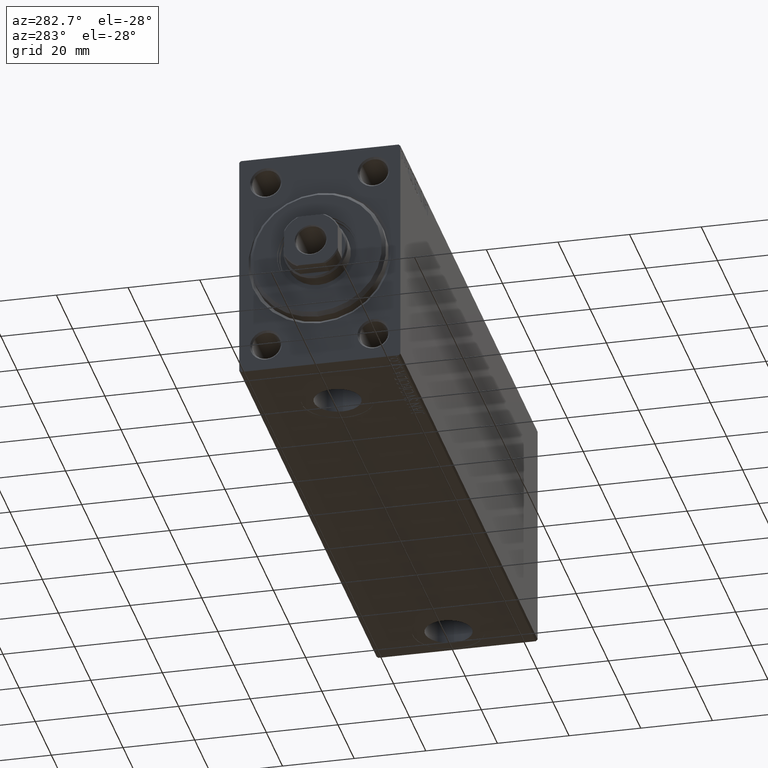
[diagram: clean part render]
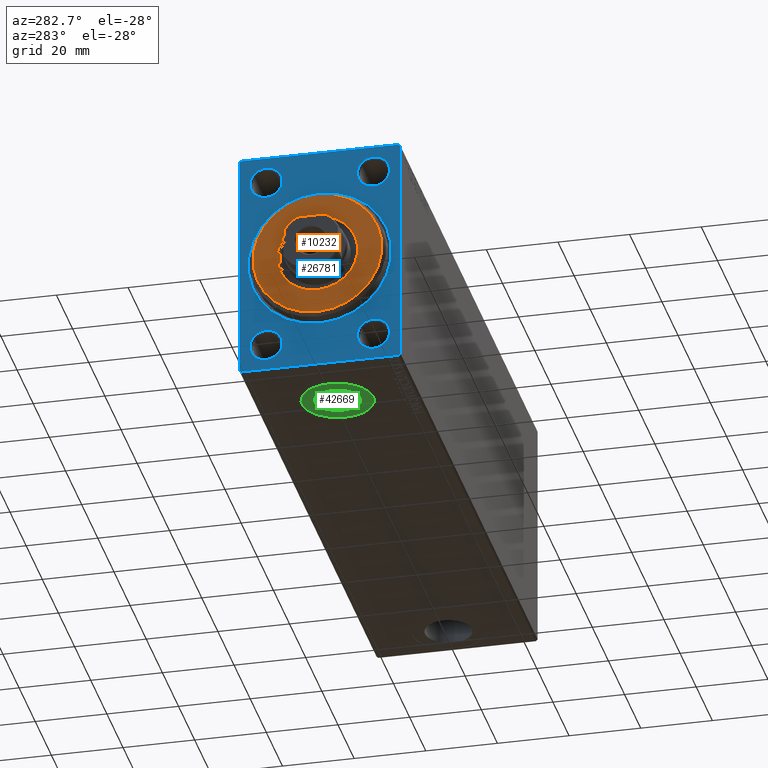
[diagram: same view with three faces highlighted in distinct colors, each labeled with its STEP entity id]
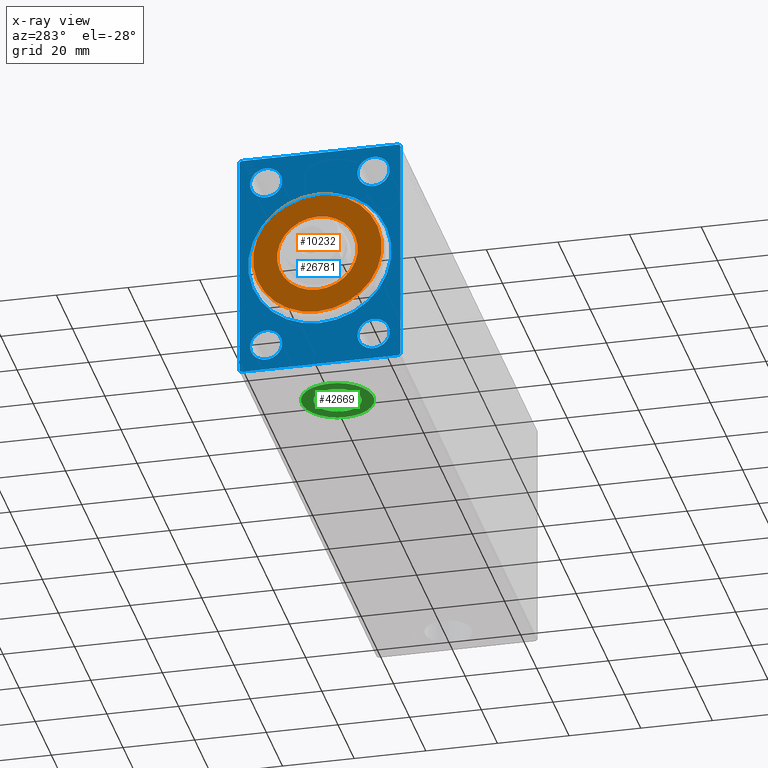
[diagram: x-ray of the same camera — body ghosted, the three highlighted faces saturated]
A machine part, auxiliary view with three faces highlighted in distinct colors.
The next image is the same camera in x-ray (body ghosted, the three faces saturated) — at least one of them is partly hidden behind the body in this view.
Their STEP definitions:

[orange] entity #10232 — the highlighted planar face has unit normal (-1, 0, 0).
#2002 = EDGE_LOOP ( 'NONE', ( #10894, #34374 ) ) ;
#2682 = CIRCLE ( 'NONE', #32114, 11.25000000000000178 ) ;
#4158 = EDGE_LOOP ( 'NONE', ( #38680, #17579 ) ) ;
#4771 = EDGE_CURVE ( 'NONE', #23328, #22974, #31014, .T. ) ;
#5817 = DIRECTION ( 'NONE',  ( 1.000000000000000000, -0.000000000000000000, 0.000000000000000000 ) ) ;
#6651 = DIRECTION ( 'NONE',  ( 0.000000000000000000, 0.000000000000000000, -1.000000000000000000 ) ) ;
#10232 = ADVANCED_FACE ( 'NONE', ( #40799, #30193 ), #23717, .T. ) ;
#10894 = ORIENTED_EDGE ( 'NONE', *, *, #21298, .F. ) ;
#11777 = CARTESIAN_POINT ( 'NONE',  ( 3.000000000000000000, 0.000000000000000000, 0.000000000000000000 ) ) ;
#12361 = CARTESIAN_POINT ( 'NONE',  ( 3.000000000000000000, 0.000000000000000000, 0.000000000000000000 ) ) ;
#12739 = CARTESIAN_POINT ( 'NONE',  ( 3.000000000000000000, 0.000000000000000000, 0.000000000000000000 ) ) ;
#12965 = DIRECTION ( 'NONE',  ( 0.000000000000000000, 0.000000000000000000, -1.000000000000000000 ) ) ;
#13223 = CARTESIAN_POINT ( 'NONE',  ( 3.000000000000000000, 0.000000000000000000, 17.99999999999999645 ) ) ;
#13451 = VERTEX_POINT ( 'NONE', #33725 ) ;
#13473 = AXIS2_PLACEMENT_3D ( 'NONE', #33884, #20479, #6651 ) ;
#17544 = DIRECTION ( 'NONE',  ( 0.000000000000000000, 0.000000000000000000, -1.000000000000000000 ) ) ;
#17579 = ORIENTED_EDGE ( 'NONE', *, *, #34852, .T. ) ;
#18667 = VERTEX_POINT ( 'NONE', #18672 ) ;
#18672 = CARTESIAN_POINT ( 'NONE',  ( 3.000000000000000000, 1.377727649040772586E-15, 11.25000000000000178 ) ) ;
#19024 = DIRECTION ( 'NONE',  ( 1.000000000000000000, 0.000000000000000000, 0.000000000000000000 ) ) ;
#20479 = DIRECTION ( 'NONE',  ( 1.000000000000000000, -0.000000000000000000, 0.000000000000000000 ) ) ;
#21016 = AXIS2_PLACEMENT_3D ( 'NONE', #11777, #22826, #36895 ) ;
#21258 = CIRCLE ( 'NONE', #44857, 17.99999999999999645 ) ;
#21298 = EDGE_CURVE ( 'NONE', #13451, #18667, #40915, .T. ) ;
#21973 = EDGE_CURVE ( 'NONE', #18667, #13451, #2682, .T. ) ;
#22826 = DIRECTION ( 'NONE',  ( 1.000000000000000000, 0.000000000000000000, 0.000000000000000000 ) ) ;
#22974 = VERTEX_POINT ( 'NONE', #41171 ) ;
#23328 = VERTEX_POINT ( 'NONE', #13223 ) ;
#23717 = PLANE ( 'NONE',  #13473 ) ;
#26410 = DIRECTION ( 'NONE',  ( 0.000000000000000000, 0.000000000000000000, -1.000000000000000000 ) ) ;
#30193 = FACE_BOUND ( 'NONE', #2002, .T. ) ;
#30194 = AXIS2_PLACEMENT_3D ( 'NONE', #12739, #5817, #12965 ) ;
#31014 = CIRCLE ( 'NONE', #30194, 17.99999999999999645 ) ;
#32114 = AXIS2_PLACEMENT_3D ( 'NONE', #12361, #19024, #26410 ) ;
#33725 = CARTESIAN_POINT ( 'NONE',  ( 3.000000000000000000, 0.000000000000000000, -11.25000000000000178 ) ) ;
#33884 = CARTESIAN_POINT ( 'NONE',  ( 3.000000000000000000, 0.000000000000000000, 0.000000000000000000 ) ) ;
#34374 = ORIENTED_EDGE ( 'NONE', *, *, #21973, .F. ) ;
#34852 = EDGE_CURVE ( 'NONE', #22974, #23328, #21258, .T. ) ;
#36895 = DIRECTION ( 'NONE',  ( 0.000000000000000000, 0.000000000000000000, -1.000000000000000000 ) ) ;
#38680 = ORIENTED_EDGE ( 'NONE', *, *, #4771, .T. ) ;
#40799 = FACE_OUTER_BOUND ( 'NONE', #4158, .T. ) ;
#40915 = CIRCLE ( 'NONE', #21016, 11.25000000000000178 ) ;
#41171 = CARTESIAN_POINT ( 'NONE',  ( 3.000000000000000000, 2.265596578422603002E-15, -17.99999999999999645 ) ) ;
#41987 = DIRECTION ( 'NONE',  ( 1.000000000000000000, -0.000000000000000000, 0.000000000000000000 ) ) ;
#44857 = AXIS2_PLACEMENT_3D ( 'NONE', #45219, #41987, #17544 ) ;
#45219 = CARTESIAN_POINT ( 'NONE',  ( 3.000000000000000000, 0.000000000000000000, 0.000000000000000000 ) ) ;

[blue] entity #26781 — the highlighted planar face has unit normal (1, 0, 0).
#591 = EDGE_CURVE ( 'NONE', #45470, #1591, #43165, .T. ) ;
#649 = LINE ( 'NONE', #21390, #38697 ) ;
#1357 = DIRECTION ( 'NONE',  ( 1.000000000000000000, 0.000000000000000000, 0.000000000000000000 ) ) ;
#1418 = ORIENTED_EDGE ( 'NONE', *, *, #2277, .T. ) ;
#1545 = ORIENTED_EDGE ( 'NONE', *, *, #38624, .T. ) ;
#1591 = VERTEX_POINT ( 'NONE', #19574 ) ;
#1716 = ORIENTED_EDGE ( 'NONE', *, *, #43760, .T. ) ;
#2277 = EDGE_CURVE ( 'NONE', #18283, #8935, #10920, .T. ) ;
#2509 = DIRECTION ( 'NONE',  ( 0.000000000000000000, 0.000000000000000000, -1.000000000000000000 ) ) ;
#2544 = CARTESIAN_POINT ( 'NONE',  ( 0.000000000000000000, -15.00000000000000000, 25.00000000000000000 ) ) ;
#2612 = DIRECTION ( 'NONE',  ( 1.000000000000000000, 0.000000000000000000, 0.000000000000000000 ) ) ;
#2870 = EDGE_LOOP ( 'NONE', ( #44843, #11140 ) ) ;
#3331 = CARTESIAN_POINT ( 'NONE',  ( 0.000000000000000000, 22.00000000000000000, 32.49999999999999289 ) ) ;
#4206 = ORIENTED_EDGE ( 'NONE', *, *, #13511, .F. ) ;
#4374 = DIRECTION ( 'NONE',  ( -0.000000000000000000, 0.7071067811865279218, 0.7071067811865672237 ) ) ;
#4520 = FACE_OUTER_BOUND ( 'NONE', #43807, .T. ) ;
#4721 = AXIS2_PLACEMENT_3D ( 'NONE', #2544, #9453, #23723 ) ;
#4735 = VERTEX_POINT ( 'NONE', #24223 ) ;
#4840 = ORIENTED_EDGE ( 'NONE', *, *, #591, .T. ) ;
#4896 = EDGE_LOOP ( 'NONE', ( #37100, #1716 ) ) ;
#5299 = DIRECTION ( 'NONE',  ( 1.000000000000000000, 0.000000000000000000, 0.000000000000000000 ) ) ;
#5822 = CARTESIAN_POINT ( 'NONE',  ( 0.000000000000000000, 15.00000000000000178, 25.00000000000000000 ) ) ;
#6200 = CARTESIAN_POINT ( 'NONE',  ( 0.000000000000000000, -15.00000000000000000, -20.50000000000002487 ) ) ;
#6264 = CARTESIAN_POINT ( 'NONE',  ( 0.000000000000000000, 2.449293598294701780E-15, -19.99999999999996092 ) ) ;
#6396 = DIRECTION ( 'NONE',  ( 0.000000000000000000, 0.000000000000000000, -1.000000000000000000 ) ) ;
#6482 = CARTESIAN_POINT ( 'NONE',  ( 0.000000000000000000, -21.99999999999996447, -32.50000000000000711 ) ) ;
#6528 = EDGE_CURVE ( 'NONE', #39019, #4735, #43559, .T. ) ;
#6590 = ORIENTED_EDGE ( 'NONE', *, *, #21448, .F. ) ;
#7052 = EDGE_CURVE ( 'NONE', #39267, #39348, #24434, .T. ) ;
#7182 = EDGE_CURVE ( 'NONE', #14911, #45431, #16341, .T. ) ;
#7443 = CARTESIAN_POINT ( 'NONE',  ( 0.000000000000000000, 22.50000000000000000, 31.99999999999999289 ) ) ;
#7609 = VECTOR ( 'NONE', #13717, 1000.000000000000000 ) ;
#7751 = DIRECTION ( 'NONE',  ( 1.000000000000000000, 0.000000000000000000, 0.000000000000000000 ) ) ;
#8337 = AXIS2_PLACEMENT_3D ( 'NONE', #20003, #13553, #2509 ) ;
#8504 = CARTESIAN_POINT ( 'NONE',  ( 0.000000000000000000, 22.50000000000000711, -32.50000000000000711 ) ) ;
#8695 = AXIS2_PLACEMENT_3D ( 'NONE', #29168, #26404, #12135 ) ;
#8710 = ORIENTED_EDGE ( 'NONE', *, *, #35972, .F. ) ;
#8935 = VERTEX_POINT ( 'NONE', #7443 ) ;
#8980 = DIRECTION ( 'NONE',  ( 0.000000000000000000, 0.000000000000000000, -1.000000000000000000 ) ) ;
#9453 = DIRECTION ( 'NONE',  ( 1.000000000000000000, 0.000000000000000000, 0.000000000000000000 ) ) ;
#9577 = CARTESIAN_POINT ( 'NONE',  ( 0.000000000000000000, 22.50000000000000711, -31.99999999999997868 ) ) ;
#9762 = ORIENTED_EDGE ( 'NONE', *, *, #42268, .T. ) ;
#9776 = CARTESIAN_POINT ( 'NONE',  ( 0.000000000000000000, 15.00000000000000178, 29.49999999999997868 ) ) ;
#10217 = ORIENTED_EDGE ( 'NONE', *, *, #44103, .F. ) ;
#10920 = LINE ( 'NONE', #3331, #17703 ) ;
#11140 = ORIENTED_EDGE ( 'NONE', *, *, #29702, .T. ) ;
#11384 = ORIENTED_EDGE ( 'NONE', *, *, #7052, .T. ) ;
#11613 = AXIS2_PLACEMENT_3D ( 'NONE', #29981, #44047, #33671 ) ;
#11927 = VECTOR ( 'NONE', #4374, 1000.000000000000000 ) ;
#11961 = DIRECTION ( 'NONE',  ( 0.000000000000000000, -1.067522139062650425E-16, 1.000000000000000000 ) ) ;
#12050 = CARTESIAN_POINT ( 'NONE',  ( 0.000000000000000000, -22.49999999999999289, 31.99999999999995737 ) ) ;
#12121 = CARTESIAN_POINT ( 'NONE',  ( 0.000000000000000000, 22.00000000000000000, 32.49999999999999289 ) ) ;
#12135 = DIRECTION ( 'NONE',  ( 0.000000000000000000, 0.000000000000000000, -1.000000000000000000 ) ) ;
#12354 = EDGE_CURVE ( 'NONE', #30907, #45626, #13539, .T. ) ;
#12357 = FACE_BOUND ( 'NONE', #2870, .T. ) ;
#12633 = EDGE_CURVE ( 'NONE', #4735, #39019, #16504, .T. ) ;
#12698 = CARTESIAN_POINT ( 'NONE',  ( 0.000000000000000000, 21.99999999999999289, -32.50000000000000711 ) ) ;
#13099 = CARTESIAN_POINT ( 'NONE',  ( 0.000000000000000000, 15.00000000000000178, -25.00000000000000000 ) ) ;
#13275 = EDGE_LOOP ( 'NONE', ( #1545, #44998 ) ) ;
#13511 = EDGE_CURVE ( 'NONE', #18283, #39348, #28825, .T. ) ;
#13539 = CIRCLE ( 'NONE', #18687, 4.499999999999976019 ) ;
#13553 = DIRECTION ( 'NONE',  ( 1.000000000000000000, 0.000000000000000000, 0.000000000000000000 ) ) ;
#13697 = DIRECTION ( 'NONE',  ( -0.000000000000000000, 0.7071067811865474617, -0.7071067811865474617 ) ) ;
#13717 = DIRECTION ( 'NONE',  ( 0.000000000000000000, 0.000000000000000000, -1.000000000000000000 ) ) ;
#14593 = DIRECTION ( 'NONE',  ( 0.000000000000000000, 0.000000000000000000, -1.000000000000000000 ) ) ;
#14807 = CARTESIAN_POINT ( 'NONE',  ( 0.000000000000000000, -21.99999999999996447, -32.50000000000000711 ) ) ;
#14911 = VERTEX_POINT ( 'NONE', #32416 ) ;
#15009 = VERTEX_POINT ( 'NONE', #15589 ) ;
#15112 = PLANE ( 'NONE',  #8695 ) ;
#15199 = CARTESIAN_POINT ( 'NONE',  ( 0.000000000000000000, -15.00000000000000000, 25.00000000000000000 ) ) ;
#15589 = CARTESIAN_POINT ( 'NONE',  ( 0.000000000000000000, -15.00000000000000000, 20.50000000000002487 ) ) ;
#15706 = VECTOR ( 'NONE', #35297, 1000.000000000000000 ) ;
#15892 = DIRECTION ( 'NONE',  ( 0.000000000000000000, 0.000000000000000000, -1.000000000000000000 ) ) ;
#16341 = CIRCLE ( 'NONE', #28105, 19.99999999999996092 ) ;
#16367 = CIRCLE ( 'NONE', #35501, 4.499999999999976019 ) ;
#16504 = CIRCLE ( 'NONE', #23755, 4.499999999999976019 ) ;
#16527 = ORIENTED_EDGE ( 'NONE', *, *, #20423, .T. ) ;
#16866 = EDGE_CURVE ( 'NONE', #15009, #20484, #44484, .T. ) ;
#17170 = CARTESIAN_POINT ( 'NONE',  ( 0.000000000000000000, -22.49999999999999289, 32.49999999999998579 ) ) ;
#17703 = VECTOR ( 'NONE', #13697, 1000.000000000000114 ) ;
#17946 = DIRECTION ( 'NONE',  ( 0.000000000000000000, 1.000000000000000000, 0.000000000000000000 ) ) ;
#18224 = CARTESIAN_POINT ( 'NONE',  ( 0.000000000000000000, 22.50000000000000000, 32.49999999999999289 ) ) ;
#18283 = VERTEX_POINT ( 'NONE', #12121 ) ;
#18334 = FACE_BOUND ( 'NONE', #28951, .T. ) ;
#18687 = AXIS2_PLACEMENT_3D ( 'NONE', #13099, #27156, #6396 ) ;
#19020 = FACE_BOUND ( 'NONE', #4896, .T. ) ;
#19574 = CARTESIAN_POINT ( 'NONE',  ( 0.000000000000000000, -22.49999999999999289, -32.00000000000001421 ) ) ;
#19841 = CARTESIAN_POINT ( 'NONE',  ( 0.000000000000000000, -15.00000000000000000, -29.49999999999997868 ) ) ;
#20003 = CARTESIAN_POINT ( 'NONE',  ( 0.000000000000000000, -15.00000000000000000, -25.00000000000000000 ) ) ;
#20423 = EDGE_CURVE ( 'NONE', #45626, #30907, #24708, .T. ) ;
#20484 = VERTEX_POINT ( 'NONE', #22718 ) ;
#21390 = CARTESIAN_POINT ( 'NONE',  ( 0.000000000000000000, -22.49999999999999289, -32.50000000000000711 ) ) ;
#21448 = EDGE_CURVE ( 'NONE', #45470, #29805, #649, .T. ) ;
#21699 = ORIENTED_EDGE ( 'NONE', *, *, #12633, .T. ) ;
#21873 = CARTESIAN_POINT ( 'NONE',  ( 0.000000000000000000, -22.49999999999999289, 31.99999999999995737 ) ) ;
#22718 = CARTESIAN_POINT ( 'NONE',  ( 0.000000000000000000, -15.00000000000000000, 29.49999999999997868 ) ) ;
#23723 = DIRECTION ( 'NONE',  ( 0.000000000000000000, 0.000000000000000000, -1.000000000000000000 ) ) ;
#23755 = AXIS2_PLACEMENT_3D ( 'NONE', #5822, #30025, #27248 ) ;
#24223 = CARTESIAN_POINT ( 'NONE',  ( 0.000000000000000000, 15.00000000000000178, 20.50000000000002487 ) ) ;
#24434 = LINE ( 'NONE', #21873, #11927 ) ;
#24708 = CIRCLE ( 'NONE', #45346, 4.499999999999976019 ) ;
#24742 = CARTESIAN_POINT ( 'NONE',  ( 0.000000000000000000, -15.00000000000000000, -25.00000000000000000 ) ) ;
#26404 = DIRECTION ( 'NONE',  ( 1.000000000000000000, 0.000000000000000000, 0.000000000000000000 ) ) ;
#26635 = AXIS2_PLACEMENT_3D ( 'NONE', #15199, #5299, #8980 ) ;
#26781 = ADVANCED_FACE ( 'NONE', ( #12357, #19020, #32636, #36096, #18334, #4520 ), #15112, .F. ) ;
#27156 = DIRECTION ( 'NONE',  ( 1.000000000000000000, 0.000000000000000000, 0.000000000000000000 ) ) ;
#27248 = DIRECTION ( 'NONE',  ( 0.000000000000000000, 0.000000000000000000, -1.000000000000000000 ) ) ;
#27447 = VECTOR ( 'NONE', #27916, 1000.000000000000000 ) ;
#27707 = DIRECTION ( 'NONE',  ( 0.000000000000000000, 0.000000000000000000, -1.000000000000000000 ) ) ;
#27916 = DIRECTION ( 'NONE',  ( 0.000000000000000000, -0.7071067811865279218, -0.7071067811865672237 ) ) ;
#28105 = AXIS2_PLACEMENT_3D ( 'NONE', #33418, #1357, #15892 ) ;
#28825 = LINE ( 'NONE', #18224, #15706 ) ;
#28951 = EDGE_LOOP ( 'NONE', ( #35647, #16527 ) ) ;
#29029 = VERTEX_POINT ( 'NONE', #19841 ) ;
#29168 = CARTESIAN_POINT ( 'NONE',  ( 0.000000000000000000, 0.000000000000000000, 0.000000000000000000 ) ) ;
#29492 = CARTESIAN_POINT ( 'NONE',  ( 0.000000000000000000, 15.00000000000000178, -29.49999999999997868 ) ) ;
#29702 = EDGE_CURVE ( 'NONE', #45431, #14911, #40314, .T. ) ;
#29805 = VERTEX_POINT ( 'NONE', #12698 ) ;
#29981 = CARTESIAN_POINT ( 'NONE',  ( 0.000000000000000000, 0.000000000000000000, 0.000000000000000000 ) ) ;
#30025 = DIRECTION ( 'NONE',  ( 1.000000000000000000, 0.000000000000000000, 0.000000000000000000 ) ) ;
#30907 = VERTEX_POINT ( 'NONE', #37255 ) ;
#32416 = CARTESIAN_POINT ( 'NONE',  ( 0.000000000000000000, 0.000000000000000000, 19.99999999999996092 ) ) ;
#32636 = FACE_BOUND ( 'NONE', #13275, .T. ) ;
#33161 = LINE ( 'NONE', #8504, #41205 ) ;
#33418 = CARTESIAN_POINT ( 'NONE',  ( 0.000000000000000000, 0.000000000000000000, 0.000000000000000000 ) ) ;
#33671 = DIRECTION ( 'NONE',  ( 0.000000000000000000, 0.000000000000000000, -1.000000000000000000 ) ) ;
#33863 = VECTOR ( 'NONE', #35570, 1000.000000000000000 ) ;
#33978 = CIRCLE ( 'NONE', #26635, 4.499999999999976019 ) ;
#33986 = VERTEX_POINT ( 'NONE', #6200 ) ;
#35297 = DIRECTION ( 'NONE',  ( 0.000000000000000000, -1.000000000000000000, -1.541976423090495633E-16 ) ) ;
#35501 = AXIS2_PLACEMENT_3D ( 'NONE', #24742, #38808, #14593 ) ;
#35570 = DIRECTION ( 'NONE',  ( -0.000000000000000000, -0.7071067811865721087, 0.7071067811865230368 ) ) ;
#35647 = ORIENTED_EDGE ( 'NONE', *, *, #12354, .T. ) ;
#35972 = EDGE_CURVE ( 'NONE', #44544, #8935, #33161, .T. ) ;
#36096 = FACE_BOUND ( 'NONE', #43743, .T. ) ;
#36684 = CARTESIAN_POINT ( 'NONE',  ( 0.000000000000000000, 22.50000000000000711, -31.99999999999997868 ) ) ;
#37100 = ORIENTED_EDGE ( 'NONE', *, *, #40823, .T. ) ;
#37255 = CARTESIAN_POINT ( 'NONE',  ( 0.000000000000000000, 15.00000000000000178, -20.50000000000002487 ) ) ;
#38624 = EDGE_CURVE ( 'NONE', #20484, #15009, #33978, .T. ) ;
#38697 = VECTOR ( 'NONE', #17946, 1000.000000000000000 ) ;
#38808 = DIRECTION ( 'NONE',  ( 1.000000000000000000, 0.000000000000000000, 0.000000000000000000 ) ) ;
#39019 = VERTEX_POINT ( 'NONE', #9776 ) ;
#39040 = ORIENTED_EDGE ( 'NONE', *, *, #6528, .T. ) ;
#39267 = VERTEX_POINT ( 'NONE', #12050 ) ;
#39348 = VERTEX_POINT ( 'NONE', #45206 ) ;
#39551 = DIRECTION ( 'NONE',  ( 0.000000000000000000, 0.000000000000000000, -1.000000000000000000 ) ) ;
#40314 = CIRCLE ( 'NONE', #11613, 19.99999999999996092 ) ;
#40753 = CIRCLE ( 'NONE', #8337, 4.499999999999976019 ) ;
#40823 = EDGE_CURVE ( 'NONE', #33986, #29029, #16367, .T. ) ;
#41205 = VECTOR ( 'NONE', #11961, 1000.000000000000000 ) ;
#41998 = CARTESIAN_POINT ( 'NONE',  ( 0.000000000000000000, 15.00000000000000178, 25.00000000000000000 ) ) ;
#42268 = EDGE_CURVE ( 'NONE', #44544, #29805, #45443, .T. ) ;
#42780 = CARTESIAN_POINT ( 'NONE',  ( 0.000000000000000000, 15.00000000000000178, -25.00000000000000000 ) ) ;
#43165 = LINE ( 'NONE', #14807, #33863 ) ;
#43559 = CIRCLE ( 'NONE', #45147, 4.499999999999976019 ) ;
#43743 = EDGE_LOOP ( 'NONE', ( #39040, #21699 ) ) ;
#43760 = EDGE_CURVE ( 'NONE', #29029, #33986, #40753, .T. ) ;
#43807 = EDGE_LOOP ( 'NONE', ( #10217, #11384, #4206, #1418, #8710, #9762, #6590, #4840 ) ) ;
#44047 = DIRECTION ( 'NONE',  ( 1.000000000000000000, 0.000000000000000000, 0.000000000000000000 ) ) ;
#44103 = EDGE_CURVE ( 'NONE', #39267, #1591, #44851, .T. ) ;
#44484 = CIRCLE ( 'NONE', #4721, 4.499999999999976019 ) ;
#44544 = VERTEX_POINT ( 'NONE', #36684 ) ;
#44843 = ORIENTED_EDGE ( 'NONE', *, *, #7182, .T. ) ;
#44851 = LINE ( 'NONE', #17170, #7609 ) ;
#44998 = ORIENTED_EDGE ( 'NONE', *, *, #16866, .T. ) ;
#45147 = AXIS2_PLACEMENT_3D ( 'NONE', #41998, #2612, #27707 ) ;
#45206 = CARTESIAN_POINT ( 'NONE',  ( 0.000000000000000000, -21.99999999999997868, 32.49999999999998579 ) ) ;
#45346 = AXIS2_PLACEMENT_3D ( 'NONE', #42780, #7751, #39551 ) ;
#45431 = VERTEX_POINT ( 'NONE', #6264 ) ;
#45443 = LINE ( 'NONE', #9577, #27447 ) ;
#45470 = VERTEX_POINT ( 'NONE', #6482 ) ;
#45626 = VERTEX_POINT ( 'NONE', #29492 ) ;

[green] entity #42669 — the highlighted planar face has unit normal (0, 0, -1).
#1129 = CARTESIAN_POINT ( 'NONE',  ( 15.41999999999999638, -2.910683231281019398E-15, -32.40000000000000568 ) ) ;
#1247 = EDGE_CURVE ( 'NONE', #44287, #11646, #41253, .T. ) ;
#1589 = EDGE_CURVE ( 'NONE', #7152, #19538, #24292, .T. ) ;
#1709 = AXIS2_PLACEMENT_3D ( 'NONE', #21450, #6957, #10417 ) ;
#2424 = AXIS2_PLACEMENT_3D ( 'NONE', #3899, #7122, #17713 ) ;
#3092 = ORIENTED_EDGE ( 'NONE', *, *, #1247, .T. ) ;
#3899 = CARTESIAN_POINT ( 'NONE',  ( 0.000000000000000000, 0.000000000000000000, -32.40000000000000568 ) ) ;
#4704 = CARTESIAN_POINT ( 'NONE',  ( 22.00000000000000000, -2.910683231281019398E-15, -32.40000000000000568 ) ) ;
#6384 = DIRECTION ( 'NONE',  ( -1.000000000000000000, 0.000000000000000000, 0.000000000000000000 ) ) ;
#6755 = ORIENTED_EDGE ( 'NONE', *, *, #13515, .F. ) ;
#6957 = DIRECTION ( 'NONE',  ( 0.000000000000000000, 0.000000000000000000, -1.000000000000000000 ) ) ;
#7122 = DIRECTION ( 'NONE',  ( 0.000000000000000000, 0.000000000000000000, -1.000000000000000000 ) ) ;
#7152 = VERTEX_POINT ( 'NONE', #1129 ) ;
#8983 = DIRECTION ( 'NONE',  ( -1.000000000000000000, 0.000000000000000000, 0.000000000000000000 ) ) ;
#9823 = CIRCLE ( 'NONE', #1709, 6.580000000000002736 ) ;
#10417 = DIRECTION ( 'NONE',  ( -1.000000000000000000, 0.000000000000000000, 0.000000000000000000 ) ) ;
#11646 = VERTEX_POINT ( 'NONE', #43934 ) ;
#12268 = EDGE_LOOP ( 'NONE', ( #3092, #41626 ) ) ;
#13256 = AXIS2_PLACEMENT_3D ( 'NONE', #25796, #26268, #8983 ) ;
#13515 = EDGE_CURVE ( 'NONE', #19538, #7152, #9823, .T. ) ;
#17713 = DIRECTION ( 'NONE',  ( -1.000000000000000000, 0.000000000000000000, -0.000000000000000000 ) ) ;
#19538 = VERTEX_POINT ( 'NONE', #22879 ) ;
#21450 = CARTESIAN_POINT ( 'NONE',  ( 22.00000000000000000, -2.910683231281019398E-15, -32.40000000000000568 ) ) ;
#22879 = CARTESIAN_POINT ( 'NONE',  ( 28.58000000000000185, -2.104865637442060750E-15, -32.40000000000000568 ) ) ;
#24292 = CIRCLE ( 'NONE', #13256, 6.580000000000002736 ) ;
#25310 = FACE_OUTER_BOUND ( 'NONE', #12268, .T. ) ;
#25796 = CARTESIAN_POINT ( 'NONE',  ( 22.00000000000000000, -2.910683231281019398E-15, -32.40000000000000568 ) ) ;
#25890 = DIRECTION ( 'NONE',  ( 0.000000000000000000, 0.000000000000000000, -1.000000000000000000 ) ) ;
#26268 = DIRECTION ( 'NONE',  ( 0.000000000000000000, 0.000000000000000000, -1.000000000000000000 ) ) ;
#27032 = ORIENTED_EDGE ( 'NONE', *, *, #1589, .F. ) ;
#30770 = AXIS2_PLACEMENT_3D ( 'NONE', #4704, #25890, #39959 ) ;
#31781 = EDGE_CURVE ( 'NONE', #11646, #44287, #41819, .T. ) ;
#34064 = CARTESIAN_POINT ( 'NONE',  ( 22.00000000000000000, -2.910683231281019398E-15, -32.40000000000000568 ) ) ;
#35464 = FACE_BOUND ( 'NONE', #40164, .T. ) ;
#35690 = PLANE ( 'NONE',  #2424 ) ;
#39959 = DIRECTION ( 'NONE',  ( -1.000000000000000000, 0.000000000000000000, 0.000000000000000000 ) ) ;
#40164 = EDGE_LOOP ( 'NONE', ( #27032, #6755 ) ) ;
#41253 = CIRCLE ( 'NONE', #44913, 10.00000000000000000 ) ;
#41626 = ORIENTED_EDGE ( 'NONE', *, *, #31781, .T. ) ;
#41819 = CIRCLE ( 'NONE', #30770, 10.00000000000000000 ) ;
#42669 = ADVANCED_FACE ( 'NONE', ( #35464, #25310 ), #35690, .T. ) ;
#42733 = CARTESIAN_POINT ( 'NONE',  ( 11.99999999999999822, -2.910683231281019398E-15, -32.40000000000000568 ) ) ;
#43934 = CARTESIAN_POINT ( 'NONE',  ( 32.00000000000000000, -1.686036432133666338E-15, -32.40000000000000568 ) ) ;
#44287 = VERTEX_POINT ( 'NONE', #42733 ) ;
#44913 = AXIS2_PLACEMENT_3D ( 'NONE', #34064, #45108, #6384 ) ;
#45108 = DIRECTION ( 'NONE',  ( 0.000000000000000000, 0.000000000000000000, -1.000000000000000000 ) ) ;